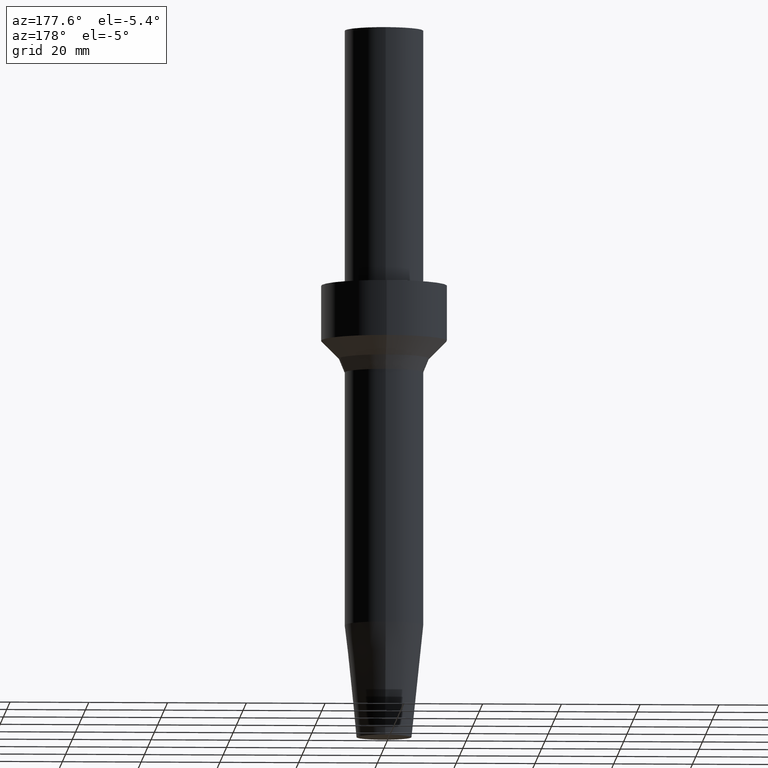
[diagram: clean part render]
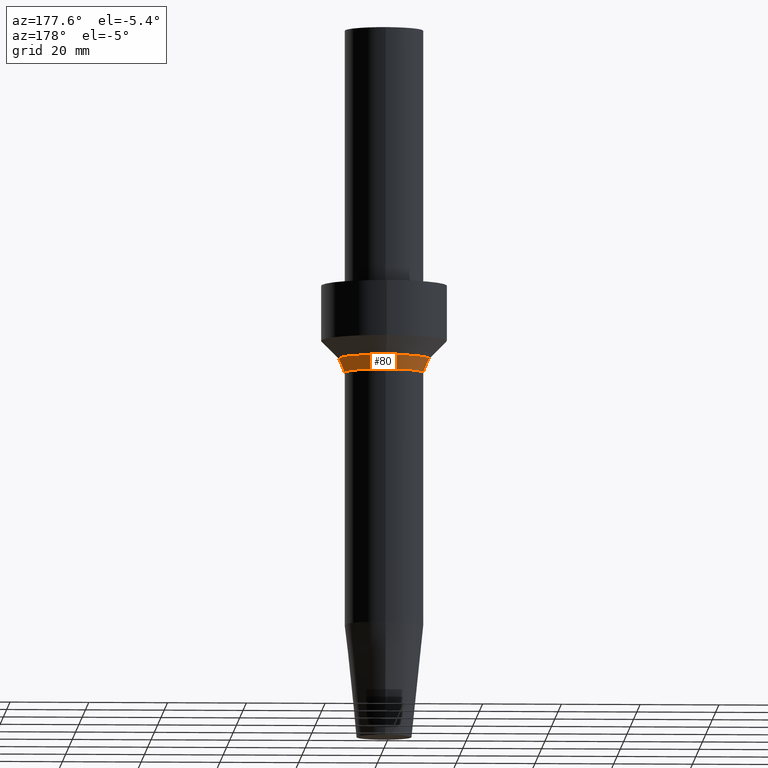
[diagram: same view with one face highlighted and labeled with its STEP entity id]
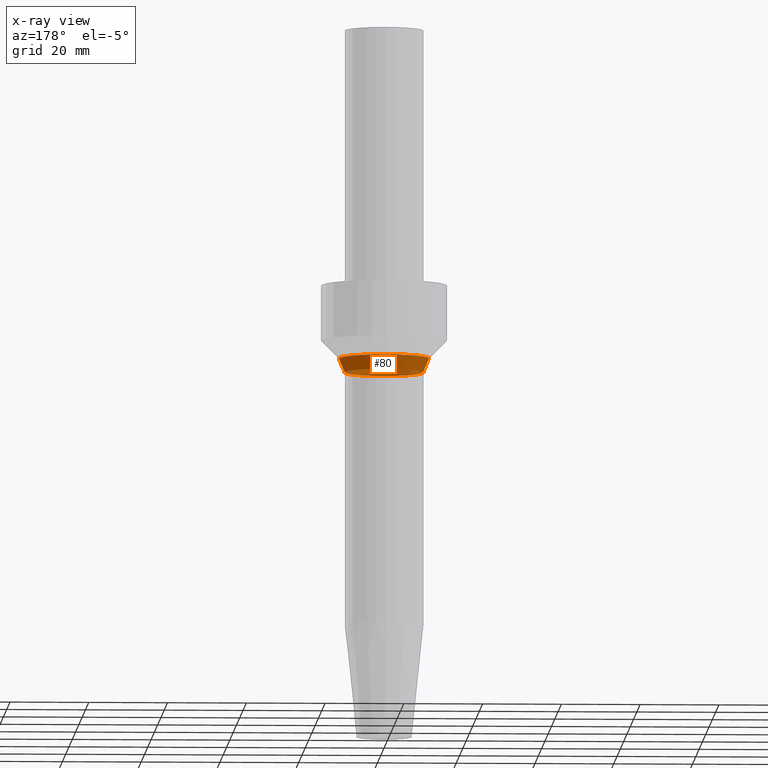
[diagram: x-ray of the same camera — body ghosted, the highlighted face saturated]
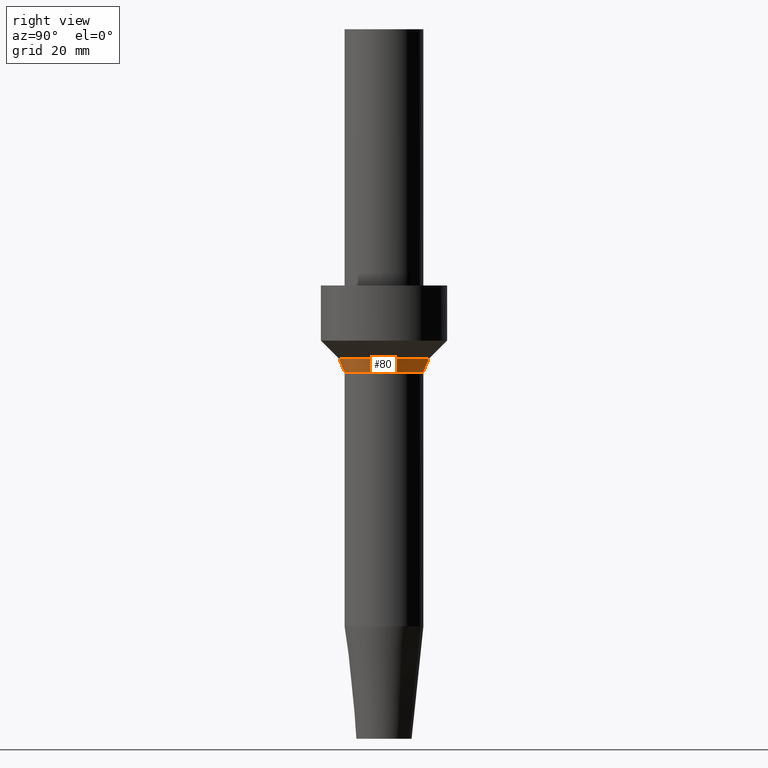
[diagram: same view with one face highlighted and labeled with its STEP entity id]
A machine part, auxiliary view. The second image highlights one B-rep face of the part: STEP entity #80.
The next image is the same camera in x-ray: the body ghosted, the highlighted face saturated — about 10% of this face is hidden behind the body in this view.
A second angle (right view) of the same face is appended — the face is thin or edge-on in the first view.
In plain terms, the highlighted conical surface has half-angle 22.5 deg.
Its self-contained STEP definition (entity closure, byte-faithful):
#80=ADVANCED_FACE('',(#99,#100),#101,.T.);
#99=FACE_BOUND('',#124,.T.);
#100=FACE_BOUND('',#125,.T.);
#101=CONICAL_SURFACE('',#126,10.732233047034,0.392699081698705);
#124=EDGE_LOOP('',(#159));
#125=EDGE_LOOP('',(#160));
#126=AXIS2_PLACEMENT_3D('',#161,#162,#163);
#159=ORIENTED_EDGE('',*,*,#183,.F.);
#160=ORIENTED_EDGE('',*,*,#182,.T.);
#161=CARTESIAN_POINT('',(-5.79850047464864E-015,1.05682703881258E-014,94.6966991411039));
#162=DIRECTION('',(-6.12323399573677E-017,1.11601254151197E-016,1.0));
#163=DIRECTION('',(2.00645320308564E-033,1.0,-1.11601254151197E-016));
#182=EDGE_CURVE('',#194,#194,#195,.T.);
#183=EDGE_CURVE('',#196,#196,#197,.T.);
#194=VERTEX_POINT('',#210);
#195=CIRCLE('',#211,11.4644660940675);
#196=VERTEX_POINT('',#212);
#197=CIRCLE('',#213,10.0000000000004);
#210=CARTESIAN_POINT('',(-5.90674498167807E-015,11.4644660940676,96.4644660940702));
#211=AXIS2_PLACEMENT_3D('',#230,#231,#232);
#212=CARTESIAN_POINT('',(-5.69025596761921E-015,10.0000000000004,92.9289321881376));
#213=AXIS2_PLACEMENT_3D('',#233,#234,#235);
#230=CARTESIAN_POINT('',(-5.90674498167807E-015,1.07655553971239E-014,96.4644660940702));
#231=DIRECTION('',(6.12323399573677E-017,-1.11601254151197E-016,-1.0));
#232=DIRECTION('',(2.00645320308564E-033,1.0,-1.11601254151197E-016));
#233=CARTESIAN_POINT('',(-5.69025596761921E-015,1.03709853791277E-014,92.9289321881376));
#234=DIRECTION('',(6.12323399573676E-017,-1.11601254151197E-016,-1.0));
#235=DIRECTION('',(2.00645320308564E-033,1.0,-1.11601254151197E-016));